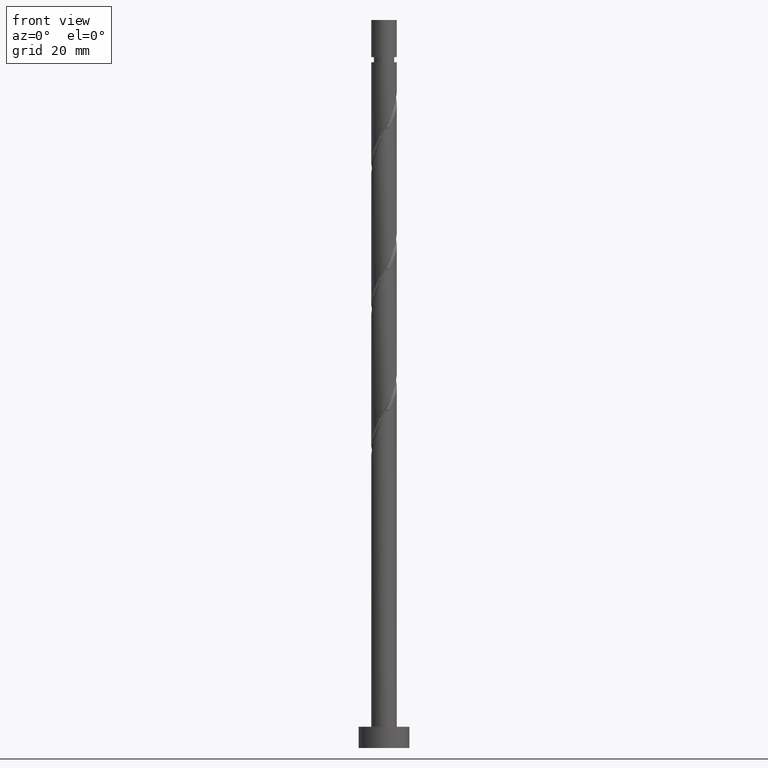
[diagram: clean part render]
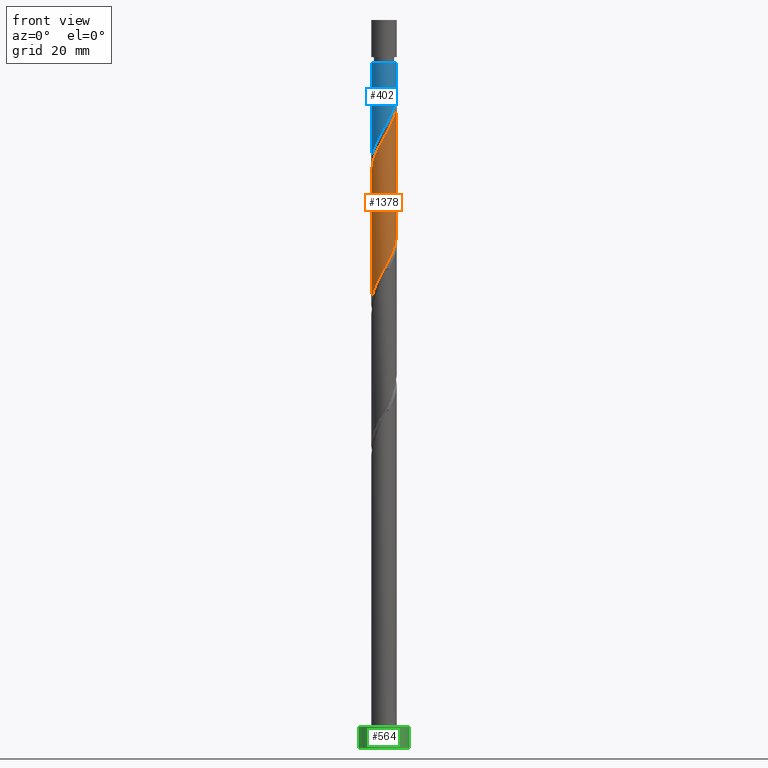
[diagram: same view with three faces highlighted in distinct colors, each labeled with its STEP entity id]
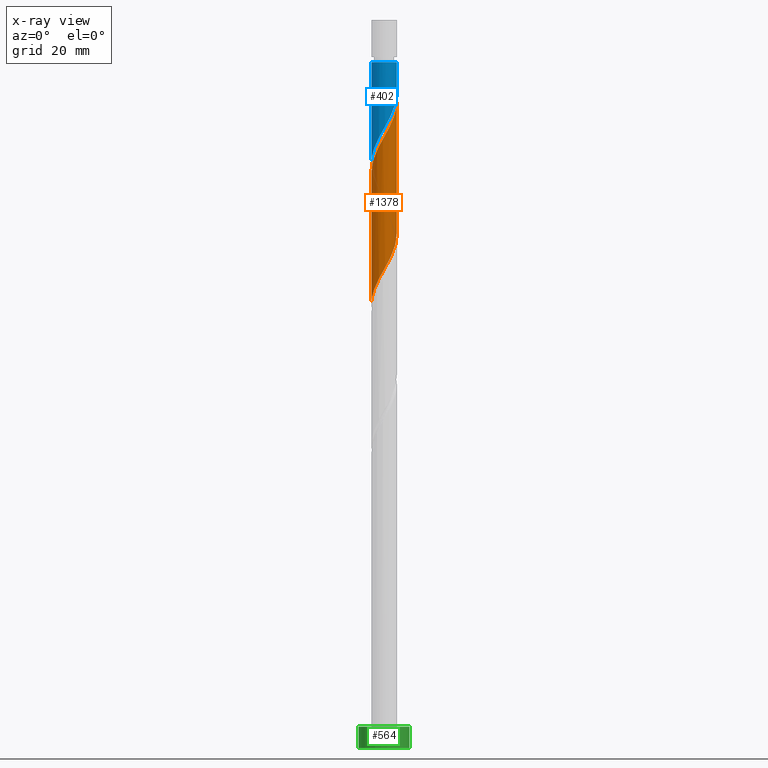
[diagram: x-ray of the same camera — body ghosted, the three highlighted faces saturated]
A machine part, front view with three faces highlighted in distinct colors.
The next image is the same camera in x-ray (body ghosted, the three faces saturated) — at least one of them is partly hidden behind the body in this view.
Their STEP definitions:

[orange] entity #1378 — the highlighted cylindrical surface (edge-blend (fillet) strip) has radius 3 mm, axis along (-0, -0, -1).
#8 = CARTESIAN_POINT ( 'NONE',  ( 0.2099341193570268549, -3.018595548697906583, 144.6674373920105268 ) ) ;
#15 = CARTESIAN_POINT ( 'NONE',  ( -0.9529893618115808929, -2.844610918258240861, 142.5841040586771555 ) ) ;
#63 = CARTESIAN_POINT ( 'NONE',  ( -2.970074347914949175, -0.5784892297585043641, 105.7785485031216268 ) ) ;
#156 =( BOUNDED_CURVE ( )  B_SPLINE_CURVE ( 2, ( #611, #630, #1671, #774, #489, #362, #1039, #1153, #230, #1172, #1560, #343, #886, #210, #325, #186, #1030, #1571, #599, #353, #1441, #734, #1274, #63, #1145, #1709, #221 ),
 .UNSPECIFIED., .F., .T. ) 
 B_SPLINE_CURVE_WITH_KNOTS ( ( 3, 2, 2, 2, 2, 2, 2, 2, 2, 2, 2, 2, 2, 3 ),
 ( 0.5545317669814463502, 0.5625000000000000000, 0.5729166666666666297, 0.5833333333333333703, 0.5937500000000000000, 0.6041666666666666297, 0.6145833333333333703, 0.6250000000000000000, 0.6354166666666666297, 0.6458333333333333703, 0.6562500000000000000, 0.6666666666666666297, 0.6770833333333333703, 0.6795317669814462391 ),
 .UNSPECIFIED. ) 
 CURVE ( )  GEOMETRIC_REPRESENTATION_ITEM ( )  RATIONAL_B_SPLINE_CURVE ( ( 0.9062941362546392821, 0.9031415850403435863, 0.9090909090909189416, 0.9013135103398374204, 0.9090909090909189416, 0.9013135103398374204, 0.9090909090909189416, 0.9013135103398374204, 0.9090909090909189416, 0.9013135103398374204, 0.9090909090909189416, 0.9013135103398374204, 0.9090909090909189416, 0.9013135103398374204, 0.9090909090909189416, 0.9013135103398374204, 0.9090909090909189416, 0.9013135103398374204, 0.9090909090909189416, 0.9013135103398374204, 0.9090909090909189416, 0.9013135103398374204, 0.9090909090909189416, 0.9013135103398374204, 0.9090909090909189416, 0.9072628343904127757, 0.9062941362546392821 ) ) 
 REPRESENTATION_ITEM ( '' )  );
#158 = CARTESIAN_POINT ( 'NONE',  ( -2.940000000000006164, -0.5969924622639725120, 137.0285485031216410 ) ) ;
#167 = CARTESIAN_POINT ( 'NONE',  ( 1.987010638188425604, -2.247618455994270015, 148.1396596142327553 ) ) ;
#186 = CARTESIAN_POINT ( 'NONE',  ( -0.9840508051709171422, -2.861404451302099528, 111.3341040586771697 ) ) ;
#210 = CARTESIAN_POINT ( 'NONE',  ( -0.2099341193570291031, -3.018595548697902586, 112.7229929475660413 ) ) ;
#221 = CARTESIAN_POINT ( 'NONE',  ( -3.000000000000001332, -5.637576735244804235E-15, 104.7587818249983656 ) ) ;
#230 = CARTESIAN_POINT ( 'NONE',  ( 1.656756518304339787, -2.501031355072560025, 116.1952151697882982 ) ) ;
#255 = CARTESIAN_POINT ( 'NONE',  ( 3.000000000000000444, 3.673940397442059868E-16, 172.0000000000000000 ) ) ;
#281 = CARTESIAN_POINT ( 'NONE',  ( -1.986023542744037806, -2.282915221543597273, 140.5007707253438127 ) ) ;
#285 = ORIENTED_EDGE ( 'NONE', *, *, #1307, .F. ) ;
#289 = CARTESIAN_POINT ( 'NONE',  ( 2.970074347914953616, -0.5784892297585083609, 151.6118818364549270 ) ) ;
#295 = CARTESIAN_POINT ( 'NONE',  ( 2.994334948306430544, -0.1842775552007416551, 152.3063262808994125 ) ) ;
#305 = CARTESIAN_POINT ( 'NONE',  ( 3.000000000000006217, -0.09222585497301910573, 152.4684848265501103 ) ) ;
#325 = CARTESIAN_POINT ( 'NONE',  ( -0.5969924622639725120, -2.940000000000001279, 112.0285485031216126 ) ) ;
#343 = CARTESIAN_POINT ( 'NONE',  ( 0.5784892297585035870, -2.970074347914949175, 114.1118818364549554 ) ) ;
#353 = CARTESIAN_POINT ( 'NONE',  ( -2.282915221543595052, -1.986023542744032921, 108.5563262808993983 ) ) ;
#362 = CARTESIAN_POINT ( 'NONE',  ( 2.509213369244494896, -1.691106054833253491, 118.2785485031215984 ) ) ;
#372 = VECTOR ( 'NONE', #1047, 1000.000000000000000 ) ;
#429 = CARTESIAN_POINT ( 'NONE',  ( 0.9840508051709162540, -2.861404451302105301, 146.0563262808993841 ) ) ;
#439 = CARTESIAN_POINT ( 'NONE',  ( -2.685308910273303429, -1.337578430002085428, 138.4174373920105268 ) ) ;
#458 = DIRECTION ( 'NONE',  ( -1.000000000000000000, 0.000000000000000000, 0.000000000000000000 ) ) ;
#467 = ORIENTED_EDGE ( 'NONE', *, *, #984, .F. ) ;
#489 = CARTESIAN_POINT ( 'NONE',  ( 2.685308910273297212, -1.337578430002085872, 118.9729929475660981 ) ) ;
#494 = VERTEX_POINT ( 'NONE', #972 ) ;
#550 = CARTESIAN_POINT ( 'NONE',  ( 2.501031355072562690, -1.656756518304346448, 149.5285485031215842 ) ) ;
#576 = CARTESIAN_POINT ( 'NONE',  ( 3.000000000000006217, -1.704731426572686052E-15, 152.6316485145782735 ) ) ;
#584 = ORIENTED_EDGE ( 'NONE', *, *, #1202, .F. ) ;
#586 = CYLINDRICAL_SURFACE ( 'NONE', #1592, 3.000000000000000444 ) ;
#599 = CARTESIAN_POINT ( 'NONE',  ( -1.987010638188424494, -2.247618455994262465, 109.2507707253438411 ) ) ;
#611 = CARTESIAN_POINT ( 'NONE',  ( 3.000000000000001332, -3.409462853145398924E-15, 121.4254484916650085 ) ) ;
#630 = CARTESIAN_POINT ( 'NONE',  ( 3.000000000000000888, -0.3015113445777657386, 120.8920221224757512 ) ) ;
#659 = DIRECTION ( 'NONE',  ( -0.000000000000000000, -0.000000000000000000, -1.000000000000000000 ) ) ;
#676 = CARTESIAN_POINT ( 'NONE',  ( -3.000000000000004885, -0.3015113445777676260, 136.4984082171008595 ) ) ;
#679 = VECTOR ( 'NONE', #659, 1000.000000000000000 ) ;
#701 = CARTESIAN_POINT ( 'NONE',  ( -0.1842775552007401840, -2.994334948306430988, 143.9729929475661265 ) ) ;
#734 = CARTESIAN_POINT ( 'NONE',  ( -2.719147488601524110, -1.327489493864649317, 107.1674373920104983 ) ) ;
#755 = VERTEX_POINT ( 'NONE', #1267 ) ;
#760 = DIRECTION ( 'NONE',  ( -0.000000000000000000, -0.000000000000000000, -1.000000000000000000 ) ) ;
#774 = CARTESIAN_POINT ( 'NONE',  ( 2.861404451302098195, -0.9840508051709185855, 119.6674373920105268 ) ) ;
#837 = CARTESIAN_POINT ( 'NONE',  ( -2.509213369244501113, -1.691106054833253269, 139.1118818364549554 ) ) ;
#864 = CARTESIAN_POINT ( 'NONE',  ( 0.000000000000000000, 0.000000000000000000, 172.0000000000000000 ) ) ;
#883 = FACE_OUTER_BOUND ( 'NONE', #1288, .T. ) ;
#886 = CARTESIAN_POINT ( 'NONE',  ( 0.1842775552007372142, -2.994334948306426103, 113.4174373920105268 ) ) ;
#920 = CARTESIAN_POINT ( 'NONE',  ( -3.000000000000001332, -5.637576735244804235E-15, 104.7587818249983513 ) ) ;
#967 = CARTESIAN_POINT ( 'NONE',  ( 2.844610918258240861, -0.9529893618115812259, 150.9174373920105836 ) ) ;
#972 = CARTESIAN_POINT ( 'NONE',  ( -3.000000000000006661, -2.392605510979208467E-16, 135.9649818479116163 ) ) ;
#976 = CARTESIAN_POINT ( 'NONE',  ( -2.247618455994269571, -1.987010638188425604, 139.8063262808994409 ) ) ;
#984 = EDGE_CURVE ( 'NONE', #755, #1167, #156, .T. ) ;
#985 = CARTESIAN_POINT ( 'NONE',  ( 1.337578430002084984, -2.685308910273303873, 146.7507707253438696 ) ) ;
#1030 = CARTESIAN_POINT ( 'NONE',  ( -1.337578430002085206, -2.685308910273297656, 110.6396596142327269 ) ) ;
#1039 = CARTESIAN_POINT ( 'NONE',  ( 2.247618455994262465, -1.987010638188424494, 117.5841040586771982 ) ) ;
#1047 = DIRECTION ( 'NONE',  ( -0.000000000000000000, -0.000000000000000000, -1.000000000000000000 ) ) ;
#1092 = CARTESIAN_POINT ( 'NONE',  ( -2.861404451302105301, -0.9840508051709164761, 137.7229929475660413 ) ) ;
#1119 = CARTESIAN_POINT ( 'NONE',  ( -1.656756518304345338, -2.501031355072563134, 141.1952151697883266 ) ) ;
#1140 = ORIENTED_EDGE ( 'NONE', *, *, #1567, .T. ) ;
#1145 = CARTESIAN_POINT ( 'NONE',  ( -2.994334948306426103, -0.1842775552007381024, 105.0841040586771555 ) ) ;
#1153 = CARTESIAN_POINT ( 'NONE',  ( 1.986023542744032477, -2.282915221543595052, 116.8896596142327127 ) ) ;
#1167 = VERTEX_POINT ( 'NONE', #920 ) ;
#1172 = CARTESIAN_POINT ( 'NONE',  ( 1.327489493864649317, -2.719147488601524110, 115.5007707253438269 ) ) ;
#1202 = EDGE_CURVE ( 'NONE', #1369, #755, #1588, .T. ) ;
#1222 = CARTESIAN_POINT ( 'NONE',  ( 0.5969924622639724010, -2.940000000000006164, 145.3618818364549838 ) ) ;
#1252 = CARTESIAN_POINT ( 'NONE',  ( 2.719147488601527218, -1.327489493864653092, 150.2229929475660128 ) ) ;
#1267 = CARTESIAN_POINT ( 'NONE',  ( 3.000000000000001332, -3.409462853145398924E-15, 121.4254484916650085 ) ) ;
#1274 = CARTESIAN_POINT ( 'NONE',  ( -2.844610918258237309, -0.9529893618115770071, 106.4729929475660697 ) ) ;
#1288 = EDGE_LOOP ( 'NONE', ( #584, #285, #1140, #467 ) ) ;
#1307 = EDGE_CURVE ( 'NONE', #494, #1369, #1737, .T. ) ;
#1321 = CARTESIAN_POINT ( 'NONE',  ( -3.000000000000000444, 0.000000000000000000, 172.0000000000000000 ) ) ;
#1369 = VERTEX_POINT ( 'NONE', #1677 ) ;
#1378 = ADVANCED_FACE ( 'NONE', ( #883 ), #586, .T. ) ;
#1379 = CARTESIAN_POINT ( 'NONE',  ( -1.327489493864653092, -2.719147488601528106, 141.8896596142326985 ) ) ;
#1441 = CARTESIAN_POINT ( 'NONE',  ( -2.501031355072559137, -1.656756518304341341, 107.8618818364549412 ) ) ;
#1497 = CARTESIAN_POINT ( 'NONE',  ( -3.000000000000006661, -2.392605510979208467E-16, 135.9649818479116163 ) ) ;
#1519 = CARTESIAN_POINT ( 'NONE',  ( 2.282915221543597273, -1.986023542744037806, 148.8341040586771555 ) ) ;
#1560 = CARTESIAN_POINT ( 'NONE',  ( 0.9529893618115765630, -2.844610918258237309, 114.8063262808994267 ) ) ;
#1567 = EDGE_CURVE ( 'NONE', #494, #1167, #1733, .T. ) ;
#1571 = CARTESIAN_POINT ( 'NONE',  ( -1.691106054833252159, -2.509213369244494896, 109.9452151697882840 ) ) ;
#1588 = LINE ( 'NONE', #255, #372 ) ;
#1592 = AXIS2_PLACEMENT_3D ( 'NONE', #864, #760, #458 ) ;
#1625 = CARTESIAN_POINT ( 'NONE',  ( -0.5784892297585070287, -2.970074347914954505, 143.2785485031216695 ) ) ;
#1651 = CARTESIAN_POINT ( 'NONE',  ( 1.691106054833252603, -2.509213369244501113, 147.4452151697882698 ) ) ;
#1671 = CARTESIAN_POINT ( 'NONE',  ( 2.940000000000001279, -0.5969924622639727341, 120.3618818364549838 ) ) ;
#1677 = CARTESIAN_POINT ( 'NONE',  ( 3.000000000000006217, -1.704731426572686052E-15, 152.6316485145782735 ) ) ;
#1709 = CARTESIAN_POINT ( 'NONE',  ( -3.000000000000000888, -0.09222585497302288049, 104.9219455130264862 ) ) ;
#1733 = LINE ( 'NONE', #1321, #679 ) ;
#1737 =( BOUNDED_CURVE ( )  B_SPLINE_CURVE ( 2, ( #1497, #676, #158, #1092, #439, #837, #976, #281, #1119, #1379, #15, #1625, #701, #8, #1222, #429, #985, #1651, #167, #1519, #550, #1252, #967, #289, #295, #305, #576 ),
 .UNSPECIFIED., .F., .T. ) 
 B_SPLINE_CURVE_WITH_KNOTS ( ( 3, 2, 2, 2, 2, 2, 2, 2, 2, 2, 2, 2, 2, 3 ),
 ( 0.5545317669814463502, 0.5625000000000000000, 0.5729166666666667407, 0.5833333333333332593, 0.5937500000000000000, 0.6041666666666667407, 0.6145833333333332593, 0.6250000000000000000, 0.6354166666666667407, 0.6458333333333332593, 0.6562500000000000000, 0.6666666666666667407, 0.6770833333333332593, 0.6795317669814463502 ),
 .UNSPECIFIED. ) 
 CURVE ( )  GEOMETRIC_REPRESENTATION_ITEM ( )  RATIONAL_B_SPLINE_CURVE ( ( 0.9062941362546464985, 0.9031415850403510248, 0.9090909090909261581, 0.9013135103398447479, 0.9090909090909261581, 0.9013135103398447479, 0.9090909090909261581, 0.9013135103398447479, 0.9090909090909261581, 0.9013135103398447479, 0.9090909090909261581, 0.9013135103398447479, 0.9090909090909261581, 0.9013135103398447479, 0.9090909090909261581, 0.9013135103398447479, 0.9090909090909261581, 0.9013135103398447479, 0.9090909090909261581, 0.9013135103398447479, 0.9090909090909261581, 0.9013135103398447479, 0.9090909090909261581, 0.9013135103398447479, 0.9090909090909261581, 0.9072628343904198811, 0.9062941362546464985 ) ) 
 REPRESENTATION_ITEM ( '' )  );

[blue] entity #402 — the highlighted cylindrical surface (edge-blend (fillet) strip) has radius 3 mm, axis along (-0, -0, -1).
#34 = DIRECTION ( 'NONE',  ( -0.000000000000000000, -0.000000000000000000, -1.000000000000000000 ) ) ;
#78 = CARTESIAN_POINT ( 'NONE',  ( -2.999999999999993339, 0.000000000000000000, 162.0285485031216126 ) ) ;
#94 = CARTESIAN_POINT ( 'NONE',  ( 1.327489493864649317, -2.719147488601524110, 148.8341040586771555 ) ) ;
#117 = CARTESIAN_POINT ( 'NONE',  ( 0.9529893618115765630, -2.844610918258237309, 148.1396596142327269 ) ) ;
#129 = AXIS2_PLACEMENT_3D ( 'NONE', #559, #34, #1272 ) ;
#131 = CIRCLE ( 'NONE', #129, 2.999999999999993339 ) ;
#133 = CARTESIAN_POINT ( 'NONE',  ( -2.719147488601524110, -1.327489493864649317, 140.5007707253438696 ) ) ;
#148 = ORIENTED_EDGE ( 'NONE', *, *, #1658, .F. ) ;
#184 = CARTESIAN_POINT ( 'NONE',  ( 3.000000000000000444, 3.673940397442059868E-16, 172.0000000000000000 ) ) ;
#193 = EDGE_CURVE ( 'NONE', #1430, #391, #131, .T. ) ;
#194 = AXIS2_PLACEMENT_3D ( 'NONE', #1212, #796, #1698 ) ;
#223 = EDGE_CURVE ( 'NONE', #1430, #1329, #1120, .T. ) ;
#228 = CARTESIAN_POINT ( 'NONE',  ( 3.000000000000001332, -0.3015113445777652390, 154.2253554558090514 ) ) ;
#246 = CARTESIAN_POINT ( 'NONE',  ( -2.282915221543595052, -1.986023542744032921, 141.8896596142327269 ) ) ;
#260 = CARTESIAN_POINT ( 'NONE',  ( 2.685308910273297212, -1.337578430002085872, 152.3063262808994693 ) ) ;
#267 = CARTESIAN_POINT ( 'NONE',  ( -2.970074347914949175, -0.5784892297585043641, 139.1118818364549554 ) ) ;
#272 = VECTOR ( 'NONE', #1513, 1000.000000000000000 ) ;
#388 = CARTESIAN_POINT ( 'NONE',  ( -3.000000000000000444, 0.000000000000000000, 172.0000000000000000 ) ) ;
#391 = VERTEX_POINT ( 'NONE', #78 ) ;
#400 = CARTESIAN_POINT ( 'NONE',  ( -2.994334948306426103, -0.1842775552007381024, 138.4174373920104983 ) ) ;
#402 = ADVANCED_FACE ( 'NONE', ( #525 ), #1476, .T. ) ;
#410 = CARTESIAN_POINT ( 'NONE',  ( 3.000000000000000888, 1.764546564347180007E-15, 154.7587818249983798 ) ) ;
#479 = EDGE_LOOP ( 'NONE', ( #903, #853, #1612, #148 ) ) ;
#525 = FACE_OUTER_BOUND ( 'NONE', #479, .T. ) ;
#539 = VECTOR ( 'NONE', #1751, 1000.000000000000000 ) ;
#559 = CARTESIAN_POINT ( 'NONE',  ( 0.000000000000000000, 0.000000000000000000, 162.0285485031216126 ) ) ;
#637 = CARTESIAN_POINT ( 'NONE',  ( 0.1842775552007372142, -2.994334948306426103, 146.7507707253438696 ) ) ;
#651 = CARTESIAN_POINT ( 'NONE',  ( -1.987010638188424494, -2.247618455994262465, 142.5841040586771840 ) ) ;
#667 = CARTESIAN_POINT ( 'NONE',  ( 0.5784892297585035870, -2.970074347914949175, 147.4452151697882698 ) ) ;
#691 = CARTESIAN_POINT ( 'NONE',  ( -3.000000000000000888, -0.09222585497302339397, 138.2552788463598574 ) ) ;
#796 = DIRECTION ( 'NONE',  ( -0.000000000000000000, -0.000000000000000000, -1.000000000000000000 ) ) ;
#797 = CARTESIAN_POINT ( 'NONE',  ( 2.940000000000001279, -0.5969924622639727341, 153.6952151697882982 ) ) ;
#804 = CARTESIAN_POINT ( 'NONE',  ( 2.247618455994262465, -1.987010638188424494, 150.9174373920105268 ) ) ;
#853 = ORIENTED_EDGE ( 'NONE', *, *, #193, .T. ) ;
#903 = ORIENTED_EDGE ( 'NONE', *, *, #223, .F. ) ;
#910 = CARTESIAN_POINT ( 'NONE',  ( -2.501031355072559137, -1.656756518304341341, 141.1952151697882698 ) ) ;
#918 = CARTESIAN_POINT ( 'NONE',  ( -1.337578430002085206, -2.685308910273297656, 143.9729929475660981 ) ) ;
#1055 = CARTESIAN_POINT ( 'NONE',  ( 2.861404451302098195, -0.9840508051709185855, 153.0007707253438411 ) ) ;
#1085 = EDGE_CURVE ( 'NONE', #391, #1624, #1457, .T. ) ;
#1098 = CARTESIAN_POINT ( 'NONE',  ( -2.844610918258237309, -0.9529893618115770071, 139.8063262808994409 ) ) ;
#1120 = LINE ( 'NONE', #184, #272 ) ;
#1179 = CARTESIAN_POINT ( 'NONE',  ( -0.5969924622639725120, -2.940000000000001279, 145.3618818364549838 ) ) ;
#1212 = CARTESIAN_POINT ( 'NONE',  ( 0.000000000000000000, 0.000000000000000000, 172.0000000000000000 ) ) ;
#1272 = DIRECTION ( 'NONE',  ( -1.000000000000000000, 0.000000000000000000, 0.000000000000000000 ) ) ;
#1277 = CARTESIAN_POINT ( 'NONE',  ( -3.000000000000000888, -2.437466864310087808E-15, 138.0921151583317226 ) ) ;
#1302 = CARTESIAN_POINT ( 'NONE',  ( 2.999999999999993339, 3.673940397442055924E-16, 162.0285485031216126 ) ) ;
#1314 = CARTESIAN_POINT ( 'NONE',  ( 1.656756518304339787, -2.501031355072560025, 149.5285485031216979 ) ) ;
#1329 = VERTEX_POINT ( 'NONE', #410 ) ;
#1340 = CARTESIAN_POINT ( 'NONE',  ( 2.509213369244494896, -1.691106054833253491, 151.6118818364549838 ) ) ;
#1347 = CARTESIAN_POINT ( 'NONE',  ( 1.986023542744032477, -2.282915221543595052, 150.2229929475660413 ) ) ;
#1430 = VERTEX_POINT ( 'NONE', #1302 ) ;
#1457 = LINE ( 'NONE', #388, #539 ) ;
#1464 = CARTESIAN_POINT ( 'NONE',  ( -1.691106054833252159, -2.509213369244494896, 143.2785485031216410 ) ) ;
#1476 = CYLINDRICAL_SURFACE ( 'NONE', #194, 3.000000000000000444 ) ;
#1513 = DIRECTION ( 'NONE',  ( -0.000000000000000000, -0.000000000000000000, -1.000000000000000000 ) ) ;
#1586 = CARTESIAN_POINT ( 'NONE',  ( -0.9840508051709171422, -2.861404451302099528, 144.6674373920104983 ) ) ;
#1594 = CARTESIAN_POINT ( 'NONE',  ( -0.2099341193570291031, -3.018595548697902586, 146.0563262808994125 ) ) ;
#1612 = ORIENTED_EDGE ( 'NONE', *, *, #1085, .T. ) ;
#1614 = CARTESIAN_POINT ( 'NONE',  ( -3.000000000000000888, -2.437466864310087808E-15, 138.0921151583317226 ) ) ;
#1620 =( BOUNDED_CURVE ( )  B_SPLINE_CURVE ( 2, ( #1713, #228, #797, #1055, #260, #1340, #804, #1347, #1314, #94, #117, #667, #637, #1594, #1179, #1586, #918, #1464, #651, #246, #910, #133, #1098, #267, #400, #691, #1277 ),
 .UNSPECIFIED., .F., .T. ) 
 B_SPLINE_CURVE_WITH_KNOTS ( ( 3, 2, 2, 2, 2, 2, 2, 2, 2, 2, 2, 2, 2, 3 ),
 ( 0.3045317669814462946, 0.3125000000000000000, 0.3229166666666666852, 0.3333333333333333148, 0.3437500000000000000, 0.3541666666666666852, 0.3645833333333333148, 0.3750000000000000000, 0.3854166666666666852, 0.3958333333333333148, 0.4062500000000000000, 0.4166666666666666852, 0.4270833333333333148, 0.4295317669814461836 ),
 .UNSPECIFIED. ) 
 CURVE ( )  GEOMETRIC_REPRESENTATION_ITEM ( )  RATIONAL_B_SPLINE_CURVE ( ( 0.9062941362546393931, 0.9031415850403436973, 0.9090909090909189416, 0.9013135103398374204, 0.9090909090909189416, 0.9013135103398374204, 0.9090909090909189416, 0.9013135103398374204, 0.9090909090909189416, 0.9013135103398374204, 0.9090909090909189416, 0.9013135103398374204, 0.9090909090909189416, 0.9013135103398374204, 0.9090909090909189416, 0.9013135103398374204, 0.9090909090909189416, 0.9013135103398374204, 0.9090909090909189416, 0.9013135103398374204, 0.9090909090909189416, 0.9013135103398374204, 0.9090909090909189416, 0.9013135103398374204, 0.9090909090909189416, 0.9072628343904127757, 0.9062941362546393931 ) ) 
 REPRESENTATION_ITEM ( '' )  );
#1624 = VERTEX_POINT ( 'NONE', #1614 ) ;
#1658 = EDGE_CURVE ( 'NONE', #1329, #1624, #1620, .T. ) ;
#1698 = DIRECTION ( 'NONE',  ( -1.000000000000000000, 0.000000000000000000, 0.000000000000000000 ) ) ;
#1713 = CARTESIAN_POINT ( 'NONE',  ( 3.000000000000000888, 1.764546564347180007E-15, 154.7587818249983798 ) ) ;
#1751 = DIRECTION ( 'NONE',  ( -0.000000000000000000, -0.000000000000000000, -1.000000000000000000 ) ) ;

[green] entity #564 — the highlighted cylindrical surface (edge-blend (fillet) strip) has radius 6 mm, axis along (-0, -0, -1).
#28 = CYLINDRICAL_SURFACE ( 'NONE', #823, 6.000000000000000888 ) ;
#231 = VERTEX_POINT ( 'NONE', #714 ) ;
#243 = VERTEX_POINT ( 'NONE', #1660 ) ;
#263 = DIRECTION ( 'NONE',  ( 1.000000000000000000, 0.000000000000000000, 0.000000000000000000 ) ) ;
#269 = CARTESIAN_POINT ( 'NONE',  ( 0.000000000000000000, 0.000000000000000000, 5.000000000000000000 ) ) ;
#367 = CARTESIAN_POINT ( 'NONE',  ( 6.000000000000000888, 7.347880794884120722E-16, 5.000000000000000000 ) ) ;
#375 = VERTEX_POINT ( 'NONE', #666 ) ;
#393 = LINE ( 'NONE', #367, #1639 ) ;
#399 = CARTESIAN_POINT ( 'NONE',  ( 0.000000000000000000, 0.000000000000000000, 5.000000000000000000 ) ) ;
#488 = AXIS2_PLACEMENT_3D ( 'NONE', #269, #944, #263 ) ;
#540 = DIRECTION ( 'NONE',  ( 0.000000000000000000, 0.000000000000000000, 1.000000000000000000 ) ) ;
#564 = ADVANCED_FACE ( 'NONE', ( #827 ), #28, .T. ) ;
#629 = CIRCLE ( 'NONE', #879, 6.000000000000000888 ) ;
#666 = CARTESIAN_POINT ( 'NONE',  ( -6.000000000000000888, 0.000000000000000000, 5.000000000000000000 ) ) ;
#693 = EDGE_CURVE ( 'NONE', #243, #989, #629, .T. ) ;
#714 = CARTESIAN_POINT ( 'NONE',  ( 6.000000000000000888, 7.347880794884120722E-16, 5.000000000000000000 ) ) ;
#753 = EDGE_CURVE ( 'NONE', #375, #243, #1126, .T. ) ;
#810 = CARTESIAN_POINT ( 'NONE',  ( 0.000000000000000000, 0.000000000000000000, 0.000000000000000000 ) ) ;
#823 = AXIS2_PLACEMENT_3D ( 'NONE', #399, #1250, #1501 ) ;
#827 = FACE_OUTER_BOUND ( 'NONE', #1448, .T. ) ;
#879 = AXIS2_PLACEMENT_3D ( 'NONE', #810, #540, #1082 ) ;
#889 = DIRECTION ( 'NONE',  ( -0.000000000000000000, -0.000000000000000000, -1.000000000000000000 ) ) ;
#934 = ORIENTED_EDGE ( 'NONE', *, *, #1037, .F. ) ;
#944 = DIRECTION ( 'NONE',  ( 0.000000000000000000, 0.000000000000000000, 1.000000000000000000 ) ) ;
#989 = VERTEX_POINT ( 'NONE', #1580 ) ;
#1008 = ORIENTED_EDGE ( 'NONE', *, *, #1635, .F. ) ;
#1037 = EDGE_CURVE ( 'NONE', #375, #231, #1477, .T. ) ;
#1082 = DIRECTION ( 'NONE',  ( 1.000000000000000000, 0.000000000000000000, 0.000000000000000000 ) ) ;
#1126 = LINE ( 'NONE', #1424, #1702 ) ;
#1250 = DIRECTION ( 'NONE',  ( -0.000000000000000000, -0.000000000000000000, -1.000000000000000000 ) ) ;
#1424 = CARTESIAN_POINT ( 'NONE',  ( -6.000000000000000888, 0.000000000000000000, 5.000000000000000000 ) ) ;
#1448 = EDGE_LOOP ( 'NONE', ( #1008, #934, #1487, #1584 ) ) ;
#1477 = CIRCLE ( 'NONE', #488, 6.000000000000000888 ) ;
#1487 = ORIENTED_EDGE ( 'NONE', *, *, #753, .T. ) ;
#1501 = DIRECTION ( 'NONE',  ( -1.000000000000000000, 0.000000000000000000, 0.000000000000000000 ) ) ;
#1580 = CARTESIAN_POINT ( 'NONE',  ( 6.000000000000000888, 7.347880794884120722E-16, 0.000000000000000000 ) ) ;
#1584 = ORIENTED_EDGE ( 'NONE', *, *, #693, .T. ) ;
#1608 = DIRECTION ( 'NONE',  ( -0.000000000000000000, -0.000000000000000000, -1.000000000000000000 ) ) ;
#1635 = EDGE_CURVE ( 'NONE', #231, #989, #393, .T. ) ;
#1639 = VECTOR ( 'NONE', #1608, 1000.000000000000000 ) ;
#1660 = CARTESIAN_POINT ( 'NONE',  ( -6.000000000000000888, 0.000000000000000000, 0.000000000000000000 ) ) ;
#1702 = VECTOR ( 'NONE', #889, 1000.000000000000000 ) ;